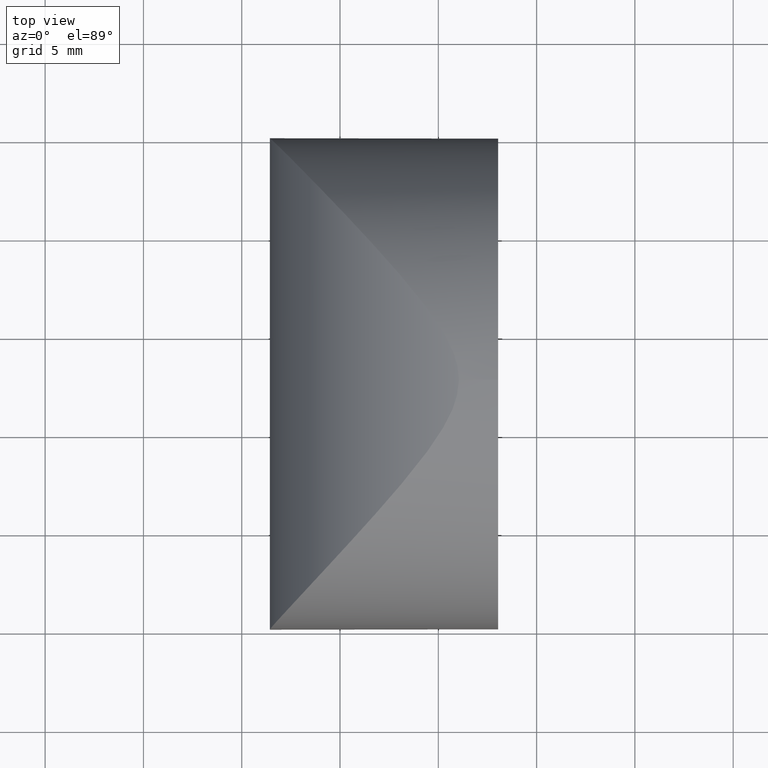
[diagram: clean part render]
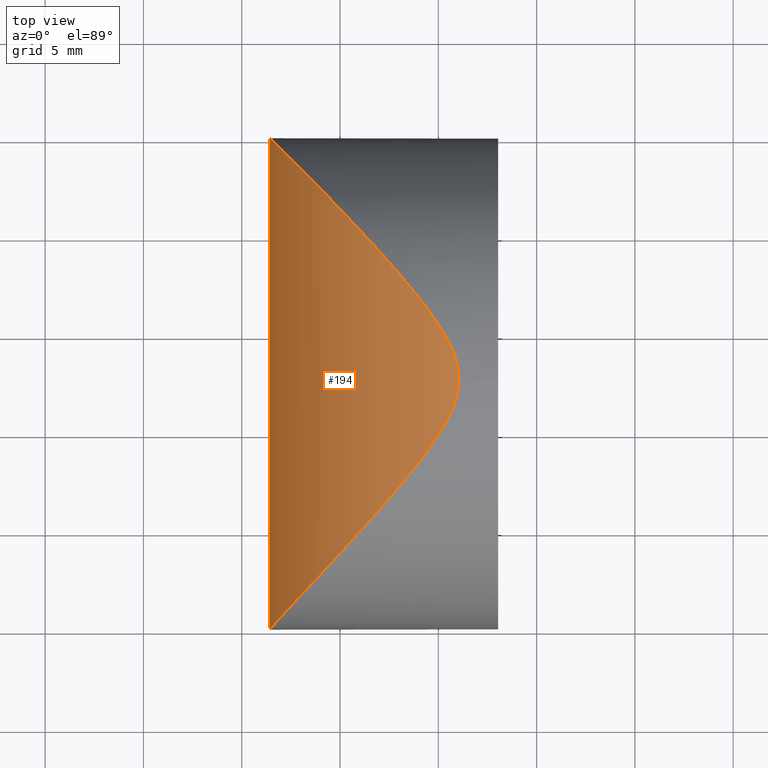
[diagram: same view with one face highlighted and labeled with its STEP entity id]
A machine part, top view. The second image highlights one B-rep face of the part: STEP entity #194.
In plain terms, the highlighted cylindrical surface (partial cylindrical patch) has radius 12.93 mm, axis along (-0, -1, -0).
Its self-contained STEP definition (entity closure, byte-faithful):
#3 = CARTESIAN_POINT ( 'NONE',  ( -7.784775710873533100, 24.18099804381603200, 4.472247805447182100 ) ) ;
#6 = CARTESIAN_POINT ( 'NONE',  ( -0.9056188999209791000, 8.401276632422492300, -11.81506768295658300 ) ) ;
#7 = CARTESIAN_POINT ( 'NONE',  ( -2.009855737516241800, 17.95246836990057200, 11.27222098194238800 ) ) ;
#8 = CARTESIAN_POINT ( 'NONE',  ( -6.654596805328910000, 1.998344469217676400, 6.792376110096642900 ) ) ;
#9 = CARTESIAN_POINT ( 'NONE',  ( -7.657099094575063000, 0.9517075878183864900, -4.803552693736532000 ) ) ;
#10 = CARTESIAN_POINT ( 'NONE',  ( -8.570953549855751400, 0.003974291431471180400, 0.5634083442298143400 ) ) ;
#11 = CARTESIAN_POINT ( 'NONE',  ( 0.3934333880308635300, 14.70332077013992500, -12.31071916551053700 ) ) ;
#13 = CARTESIAN_POINT ( 'NONE',  ( -5.288360844750323900, 21.56114607061118300, -8.644383663103854000 ) ) ;
#14 = CARTESIAN_POINT ( 'NONE',  ( -7.311666308477994900, 1.311456995442970200, -5.590499222245978400 ) ) ;
#17 = CARTESIAN_POINT ( 'NONE',  ( -2.029244429234928800, 7.024883523165677900, -11.26145688478927700 ) ) ;
#20 = CARTESIAN_POINT ( 'NONE',  ( -6.461520254780253900, 22.79913546770301700, 7.095047629533968200 ) ) ;
#21 = CARTESIAN_POINT ( 'NONE',  ( -7.251592741349689700, 1.374109388676209200, 5.713708246330336100 ) ) ;
#23 = CARTESIAN_POINT ( 'NONE',  ( 0.9458505288480231200, 11.57783815909967200, 12.47359831782778400 ) ) ;
#24 = CARTESIAN_POINT ( 'NONE',  ( -8.571501468349044500, 0.003407211445560569600, -0.3736109084563136200 ) ) ;
#27 = CARTESIAN_POINT ( 'NONE',  ( -5.814065029703029600, 2.882243041960948800, -8.025269845866624500 ) ) ;
#28 = CARTESIAN_POINT ( 'NONE',  ( -8.471903930712370500, 24.89364958003238800, 1.863942456521807500 ) ) ;
#29 = CARTESIAN_POINT ( 'NONE',  ( -6.494988704706735800, 2.165721294186301100, -7.043914741199440500 ) ) ;
#34 = CARTESIAN_POINT ( 'NONE',  ( -3.697008096064462500, 19.84282720166356000, -10.12291235838386100 ) ) ;
#35 = CARTESIAN_POINT ( 'NONE',  ( -0.3508739512178643000, 15.85706512182353100, -12.04671048563409000 ) ) ;
#38 = CARTESIAN_POINT ( 'NONE',  ( -7.760227441105685700, 0.8445143883895751500, 4.538359350223685400 ) ) ;
#40 = CARTESIAN_POINT ( 'NONE',  ( -3.418220001892494400, 19.53635523433972300, -10.33815553510264000 ) ) ;
#41 = CARTESIAN_POINT ( 'NONE',  ( 1.048408302435615700, 12.02968226136324300, 12.50000000000000700 ) ) ;
#42 = CARTESIAN_POINT ( 'NONE',  ( -7.283142103000696600, 23.65879778533431800, -5.649400670172624000 ) ) ;
#43 = CARTESIAN_POINT ( 'NONE',  ( 0.6122416535426045100, 14.29932653611630200, -12.37760336662099200 ) ) ;
#44 = CARTESIAN_POINT ( 'NONE',  ( -8.392208814854219800, 0.1889363729310570600, -2.212819599177464600 ) ) ;
#45 = CARTESIAN_POINT ( 'NONE',  ( -0.08872175504748630600, 15.48455181432622000, 12.14500406086899200 ) ) ;
#46 = CARTESIAN_POINT ( 'NONE',  ( -0.8920203225758205300, 16.58123075564637400, 11.82106645048773400 ) ) ;
#47 = CARTESIAN_POINT ( 'NONE',  ( 1.022917799781243500, 12.96748111267437600, -12.49332220800304700 ) ) ;
#51 = CARTESIAN_POINT ( 'NONE',  ( 1.048408302435615700, 12.50000000000000000, 12.50000000000000500 ) ) ;
#52 = CARTESIAN_POINT ( 'NONE',  ( -6.436375762791358900, 2.227269216613799100, 7.133323030601278700 ) ) ;
#53 = CARTESIAN_POINT ( 'NONE',  ( -7.788828897006214700, 24.18521076035574400, -4.461505555585672400 ) ) ;
#56 = CARTESIAN_POINT ( 'NONE',  ( -8.061744811308338800, 24.46859331280628800, 3.633110216551330900 ) ) ;
#58 = CARTESIAN_POINT ( 'NONE',  ( 0.8616396910455073100, 13.64488886269606600, -12.44939314839540900 ) ) ;
#59 = CARTESIAN_POINT ( 'NONE',  ( -8.184530234045373800, 24.59589678916079700, -3.185000226497892900 ) ) ;
#60 = CARTESIAN_POINT ( 'NONE',  ( 1.048408302435619000, 12.50000000000000000, -12.50000000000000500 ) ) ;
#62 = CARTESIAN_POINT ( 'NONE',  ( -7.088404928410247100, 23.45560486605816300, 6.033295600814379400 ) ) ;
#63 = CARTESIAN_POINT ( 'NONE',  ( -0.8906618980691767300, 16.57943941384690600, -11.82164514040252900 ) ) ;
#64 = CARTESIAN_POINT ( 'NONE',  ( -2.575910604852767800, 18.59768239303655700, -10.93706033817248400 ) ) ;
#65 = CARTESIAN_POINT ( 'NONE',  ( -8.576177413458665900, -0.001429283595188585000, -0.1370683594311364100 ) ) ;
#66 = CARTESIAN_POINT ( 'NONE',  ( 1.048408302435612600, 12.73630966659838900, -12.50000000000000400 ) ) ;
#67 = CARTESIAN_POINT ( 'NONE',  ( -3.434752618632468800, 5.445408893040513100, -10.32564854870570600 ) ) ;
#68 = EDGE_CURVE ( 'NONE', #132, #140, #71, .T. ) ;
#71 = B_SPLINE_CURVE_WITH_KNOTS ( 'NONE', 3,
 ( #60, #66, #47, #119, #58, #43, #11, #179, #35, #63, #149, #242, #64, #40, #34, #113, #130, #13, #165, #235, #90, #203, #42, #232, #53, #75, #59, #145, #80, #85, #251, #201, #28, #160, #56, #3, #205, #228, #62, #229, #20, #161, #226, #86, #241, #168, #220, #157, #7, #243, #46, #163, #45, #192, #202, #120, #182, #148 ),
 .UNSPECIFIED., .F., .F.,
 ( 4, 2, 2, 2, 2, 2, 2, 2, 2, 2, 2, 2, 2, 2, 2, 2, 2, 2, 2, 2, 2, 2, 2, 2, 2, 2, 2, 2, 4 ),
 ( -0.02214099750765625300, -0.02144868244478510500, -0.02075636738191395300, -0.01937173725617165000, -0.01798710713042935000, -0.01660247700468705400, -0.01383321675320245400, -0.01244858662746016000, -0.01106395650171786300, -0.008294696250233270600, -0.006910066124490977700, -0.005525435998748683100, -0.004140805873006386800, -0.002756175747264097400, -0.001371545621521804600, 1.308450422048829100E-005, 0.002782344755705070500, 0.004166974881447366900, 0.005551605007189663200, 0.006936235132931956000, 0.008320865258674248900, 0.01109012551015883800, 0.01247475563590113400, 0.01385938576164343100, 0.01662864601312800300, 0.01801327613887028500, 0.01939790626461257400, 0.02078253639035486400, 0.02216716651609713900 ),
 .UNSPECIFIED. ) ;
#73 = EDGE_LOOP ( 'NONE', ( #150, #219 ) ) ;
#75 = CARTESIAN_POINT ( 'NONE',  ( -8.066606482610085400, 24.47363734887084200, -3.616792912813879400 ) ) ;
#76 = CARTESIAN_POINT ( 'NONE',  ( -7.812802919030000100, 0.7898780363981770000, -4.395756636692131500 ) ) ;
#78 = CARTESIAN_POINT ( 'NONE',  ( -8.435628845410240800, 0.1440008912727662700, 1.947433380015423100 ) ) ;
#79 = CARTESIAN_POINT ( 'NONE',  ( 0.3869021909108181200, 10.28484237014340200, -12.30865874481328200 ) ) ;
#80 = CARTESIAN_POINT ( 'NONE',  ( -8.450191762923358500, 24.87107294047750000, -1.850112368530373100 ) ) ;
#83 = DIRECTION ( 'NONE',  ( -0.0000000000000000000, -1.000000000000000000, -0.0000000000000000000 ) ) ;
#85 = CARTESIAN_POINT ( 'NONE',  ( -8.550004073799751600, 24.97436092745555700, -0.9255705950243277000 ) ) ;
#86 = CARTESIAN_POINT ( 'NONE',  ( -4.499166633712661700, 20.71434324078125800, 9.429856972776026000 ) ) ;
#88 = CARTESIAN_POINT ( 'NONE',  ( 0.3988154894249169000, 10.30647449475045000, 12.31241342602367800 ) ) ;
#90 = CARTESIAN_POINT ( 'NONE',  ( -6.687855812546549000, 23.03651653587999300, -6.738330694793334400 ) ) ;
#91 = CARTESIAN_POINT ( 'NONE',  ( -3.670095666525608400, 5.186694308679076200, 10.14418885980106200 ) ) ;
#100 = CARTESIAN_POINT ( 'NONE',  ( -8.532437705358303100, 0.04381858248434149900, -1.070922931265654100 ) ) ;
#102 = CARTESIAN_POINT ( 'NONE',  ( 1.048408302435615700, 12.50000000000000000, 12.50000000000000500 ) ) ;
#108 = CARTESIAN_POINT ( 'NONE',  ( -8.549615181031239100, 0.02604813469443596400, -0.8396078226816433600 ) ) ;
#109 = CARTESIAN_POINT ( 'NONE',  ( -5.749466737873389900, 2.950535906956133200, 8.106227011564245200 ) ) ;
#113 = CARTESIAN_POINT ( 'NONE',  ( -4.241484515215016200, 20.43612282325257800, -9.664803177678305000 ) ) ;
#114 = CARTESIAN_POINT ( 'NONE',  ( -0.8772944418600757700, 8.437785311844837800, 11.82752375158714900 ) ) ;
#115 = CARTESIAN_POINT ( 'NONE',  ( -8.041945741725545100, 0.5519462779179515900, 3.700143603762116000 ) ) ;
#116 = CARTESIAN_POINT ( 'NONE',  ( -2.597525711902668000, 6.377871244404947700, -10.92312382292887700 ) ) ;
#117 = CARTESIAN_POINT ( 'NONE',  ( 0.9272428916370982800, 11.56888705561978400, -12.46741487502479000 ) ) ;
#118 = CARTESIAN_POINT ( 'NONE',  ( 0.8584970192601929500, 11.34584435103246500, -12.44850928998382100 ) ) ;
#119 = CARTESIAN_POINT ( 'NONE',  ( 0.9296654377825055400, 13.42126096966568500, -12.46807589844800500 ) ) ;
#120 = CARTESIAN_POINT ( 'NONE',  ( 0.9424668481284381700, 13.43314519007477300, 12.47266654785823200 ) ) ;
#124 = CARTESIAN_POINT ( 'NONE',  ( 0.6160137565180838800, 10.70884526983302500, 12.37872377056412000 ) ) ;
#126 = CARTESIAN_POINT ( 'NONE',  ( -0.3405931974722321600, 9.157387370790131000, 12.05067828290458800 ) ) ;
#130 = CARTESIAN_POINT ( 'NONE',  ( -4.508136380372755900, 20.72399770908771200, -9.421294812173775000 ) ) ;
#132 = VERTEX_POINT ( 'NONE', #156 ) ;
#133 = CARTESIAN_POINT ( 'NONE',  ( 0.6097513428721612600, 10.69623422815850100, -12.37684387312700500 ) ) ;
#134 = CARTESIAN_POINT ( 'NONE',  ( -3.711557839842012800, 5.141216695223281600, -10.11139089001657100 ) ) ;
#135 = CARTESIAN_POINT ( 'NONE',  ( 1.048408302435619000, 12.50000000000000000, -12.50000000000000500 ) ) ;
#140 = VERTEX_POINT ( 'NONE', #102 ) ;
#144 = CARTESIAN_POINT ( 'NONE',  ( -6.711722831045332100, 1.938469546575873700, -6.699454455844761300 ) ) ;
#145 = CARTESIAN_POINT ( 'NONE',  ( -8.376313620906271900, 24.79460554606880900, -2.301655935059893700 ) ) ;
#146 = CARTESIAN_POINT ( 'NONE',  ( 1.048408302435612300, 12.26368818970355600, -12.50000000000000200 ) ) ;
#147 = FACE_OUTER_BOUND ( 'NONE', #73, .T. ) ;
#148 = CARTESIAN_POINT ( 'NONE',  ( 1.048408302435615700, 12.50000000000000000, 12.50000000000000500 ) ) ;
#149 = CARTESIAN_POINT ( 'NONE',  ( -1.168018795882667300, 16.92817425330709100, -11.69516591779178000 ) ) ;
#150 = ORIENTED_EDGE ( 'NONE', *, *, #68, .F. ) ;
#156 = CARTESIAN_POINT ( 'NONE',  ( 1.048408302435619000, 12.50000000000000000, -12.50000000000000500 ) ) ;
#157 = CARTESIAN_POINT ( 'NONE',  ( -2.575433776775716900, 18.59702348471576600, 10.93689406091687600 ) ) ;
#158 = EDGE_CURVE ( 'NONE', #140, #132, #162, .T. ) ;
#159 = CARTESIAN_POINT ( 'NONE',  ( -7.600553910486504500, 1.010532703906684300, 4.942068905967246900 ) ) ;
#160 = CARTESIAN_POINT ( 'NONE',  ( -8.182194623380434400, 24.59347586518887500, 3.194456032967062600 ) ) ;
#161 = CARTESIAN_POINT ( 'NONE',  ( -5.780932071802066500, 22.08272421553071400, 8.066533679276128400 ) ) ;
#162 = B_SPLINE_CURVE_WITH_KNOTS ( 'NONE', 3,
 ( #51, #41, #23, #124, #88, #209, #126, #114, #212, #181, #236, #172, #91, #197, #250, #237, #109, #52, #8, #247, #21, #159, #38, #115, #245, #231, #78, #170, #10, #65, #24, #108, #100, #214, #44, #178, #167, #76, #9, #14, #224, #144, #29, #27, #227, #238, #173, #134, #67, #116, #17, #193, #6, #207, #246, #79, #133, #118, #117, #221, #146, #135 ),
 .UNSPECIFIED., .F., .F.,
 ( 4, 2, 2, 2, 2, 2, 2, 2, 2, 2, 2, 2, 2, 2, 2, 2, 2, 2, 2, 2, 2, 2, 2, 2, 2, 2, 2, 2, 2, 2, 4 ),
 ( 0.02216716651609713900, 0.02355180920259899700, 0.02493645188910085700, 0.02632109457560271500, 0.02770573726210457500, 0.03047502263510829700, 0.03185966532161015700, 0.03324430800811201800, 0.03601359338111574000, 0.03739823606761759300, 0.03878287875411945400, 0.04016752144062131500, 0.04155216412712317600, 0.04293680681362503600, 0.04432144950012689700, 0.04501377084337782100, 0.04570609218662875800, 0.04709073487313060500, 0.04847537755963246500, 0.04986002024613432600, 0.05124466293263618700, 0.05262930561913804800, 0.05539859099214176900, 0.05678323367864363000, 0.05816787636514549100, 0.06093716173814920500, 0.06232180442465107300, 0.06370644711115294700, 0.06509108979765479400, 0.06578341114090573100, 0.06647573248415666900 ),
 .UNSPECIFIED. ) ;
#163 = CARTESIAN_POINT ( 'NONE',  ( -0.3504377797817349600, 15.85650794522087600, 12.04690461991585300 ) ) ;
#165 = CARTESIAN_POINT ( 'NONE',  ( -5.782532330602204100, 22.08443947624209600, -8.065425895260789300 ) ) ;
#167 = CARTESIAN_POINT ( 'NONE',  ( -8.086316915768254200, 0.5059178383029308000, -3.548468107495526400 ) ) ;
#168 = CARTESIAN_POINT ( 'NONE',  ( -3.684589913576362500, 19.82921073631745700, 10.13276610755242600 ) ) ;
#170 = CARTESIAN_POINT ( 'NONE',  ( -8.541925267817523700, 0.03399612876583623500, 1.030513574312016200 ) ) ;
#172 = CARTESIAN_POINT ( 'NONE',  ( -3.392322947123213700, 5.492266446838792500, 10.35750631210235500 ) ) ;
#173 = CARTESIAN_POINT ( 'NONE',  ( -4.258301505942869300, 4.545660139710334700, -9.649890923962699300 ) ) ;
#178 = CARTESIAN_POINT ( 'NONE',  ( -8.204509244697776500, 0.3833935930573229600, -3.105914903451073800 ) ) ;
#179 = CARTESIAN_POINT ( 'NONE',  ( -0.08706469087848724100, 15.48207100485849200, -12.14560337365669800 ) ) ;
#181 = CARTESIAN_POINT ( 'NONE',  ( -1.987990110072110900, 7.073083247607040200, 11.28433118475919800 ) ) ;
#182 = CARTESIAN_POINT ( 'NONE',  ( 1.048408302435615700, 12.97031347215841800, 12.50000000000000900 ) ) ;
#185 = CARTESIAN_POINT ( 'NONE',  ( 4.355204334851265500, 25.00000000000000000, 4.286263797015675000E-017 ) ) ;
#189 = DIRECTION ( 'NONE',  ( 0.0000000000000000000, 0.0000000000000000000, -1.000000000000000000 ) ) ;
#192 = CARTESIAN_POINT ( 'NONE',  ( 0.3923805020586738100, 14.70523086538894100, 12.31038707763724300 ) ) ;
#193 = CARTESIAN_POINT ( 'NONE',  ( -1.185679663079874900, 8.049814713751269200, -11.68685923671424500 ) ) ;
#194 = ADVANCED_FACE ( 'NONE', ( #147 ), #204, .T. ) ;
#196 = AXIS2_PLACEMENT_3D ( 'NONE', #185, #83, #189 ) ;
#197 = CARTESIAN_POINT ( 'NONE',  ( -4.212675974943896200, 4.595091839522550200, 9.690275266081764400 ) ) ;
#201 = CARTESIAN_POINT ( 'NONE',  ( -8.573822204807303400, 24.99899305258561800, 0.9522491053793326100 ) ) ;
#202 = CARTESIAN_POINT ( 'NONE',  ( 0.6135518574122074100, 14.29553503290865600, 12.37797336826263700 ) ) ;
#203 = CARTESIAN_POINT ( 'NONE',  ( -7.094023992767366900, 23.46147036623152700, -6.022412197242474900 ) ) ;
#204 = CYLINDRICAL_SURFACE ( 'NONE', #196, 12.93000000000000000 ) ;
#205 = CARTESIAN_POINT ( 'NONE',  ( -7.627675560059111100, 24.01768563905186200, 4.876240315649847700 ) ) ;
#207 = CARTESIAN_POINT ( 'NONE',  ( -0.3607939880245142300, 9.128959757319178100, -12.04290020215219500 ) ) ;
#209 = CARTESIAN_POINT ( 'NONE',  ( -0.07842053390449056600, 9.530897286583746500, 12.14872452534391600 ) ) ;
#212 = CARTESIAN_POINT ( 'NONE',  ( -1.153141503768493300, 8.090405200512881500, 11.70213068784994300 ) ) ;
#214 = CARTESIAN_POINT ( 'NONE',  ( -8.462774327217507800, 0.1159041678775953900, -1.759970495178899500 ) ) ;
#219 = ORIENTED_EDGE ( 'NONE', *, *, #158, .F. ) ;
#220 = CARTESIAN_POINT ( 'NONE',  ( -3.408959207924295400, 19.52609765116277500, 10.34498857247066700 ) ) ;
#221 = CARTESIAN_POINT ( 'NONE',  ( 1.022860083872073800, 12.03035133763257700, -12.49331161522510000 ) ) ;
#224 = CARTESIAN_POINT ( 'NONE',  ( -7.121258626784162400, 1.510084134392343200, -5.970792643477796700 ) ) ;
#226 = CARTESIAN_POINT ( 'NONE',  ( -5.287097130029347400, 21.55984967056972600, 8.646367651459346600 ) ) ;
#227 = CARTESIAN_POINT ( 'NONE',  ( -5.319346988627183100, 3.405841066147045700, -8.610645131926435900 ) ) ;
#228 = CARTESIAN_POINT ( 'NONE',  ( -7.279953689459513400, 23.65547283421270900, 5.655990447404660900 ) ) ;
#229 = CARTESIAN_POINT ( 'NONE',  ( -6.678309910777246100, 23.02651516977390100, 6.754140372284510400 ) ) ;
#231 = CARTESIAN_POINT ( 'NONE',  ( -8.358917560318820600, 0.2234080409912380100, 2.395347873895636900 ) ) ;
#232 = CARTESIAN_POINT ( 'NONE',  ( -7.630162773109241000, 24.02027277971760100, -4.870093533704133100 ) ) ;
#235 = CARTESIAN_POINT ( 'NONE',  ( -6.470169850532486500, 22.80822463363560700, -7.082100580967090900 ) ) ;
#236 = CARTESIAN_POINT ( 'NONE',  ( -2.553858479615465100, 6.427401606981033100, 10.95073581940817900 ) ) ;
#237 = CARTESIAN_POINT ( 'NONE',  ( -5.256418290820633400, 3.472852923355987300, 8.679503388993843800 ) ) ;
#238 = CARTESIAN_POINT ( 'NONE',  ( -4.529429654880225100, 4.253046502957472400, -9.401435640004915900 ) ) ;
#241 = CARTESIAN_POINT ( 'NONE',  ( -4.229124230777832900, 20.42273534727601000, 9.675770957641425700 ) ) ;
#242 = CARTESIAN_POINT ( 'NONE',  ( -2.007270852061756800, 17.94947009966965400, -11.27367765558903700 ) ) ;
#243 = CARTESIAN_POINT ( 'NONE',  ( -1.170637596747716300, 16.93143424333448300, 11.69392940138727100 ) ) ;
#245 = CARTESIAN_POINT ( 'NONE',  ( -8.162084599375102600, 0.4273724141899800100, 3.271706701297331800 ) ) ;
#246 = CARTESIAN_POINT ( 'NONE',  ( -0.09743510028199282900, 9.502417747781825200, -12.14184928511991600 ) ) ;
#247 = CARTESIAN_POINT ( 'NONE',  ( -7.061768509154805300, 1.572222702595446700, 6.083159166629799900 ) ) ;
#250 = CARTESIAN_POINT ( 'NONE',  ( -4.478467717172133400, 4.307984946671663100, 9.449030649848248600 ) ) ;
#251 = CARTESIAN_POINT ( 'NONE',  ( -8.575272117832433600, 25.00049284267443300, -0.4561579902459397800 ) ) ;